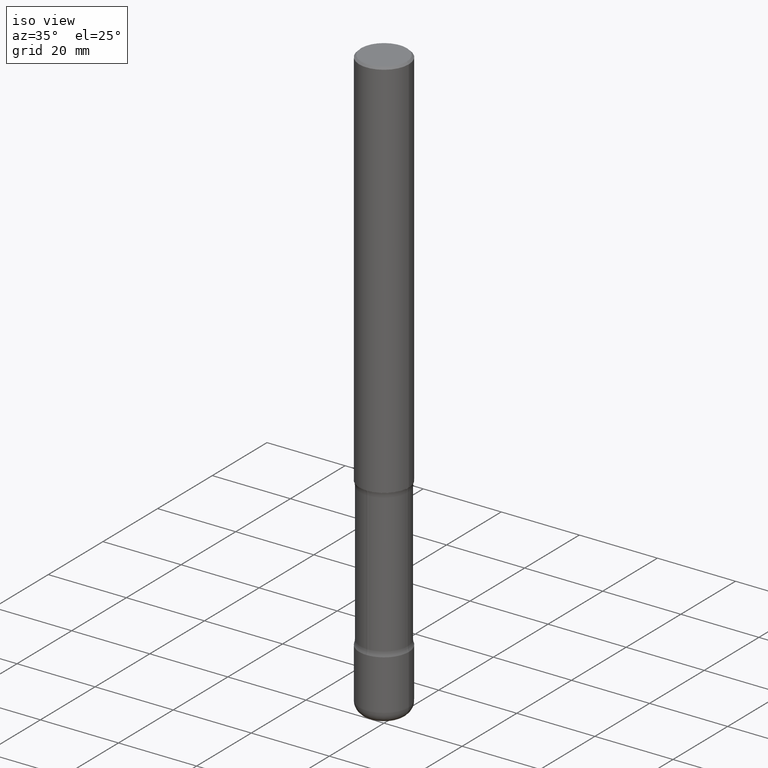
[diagram: clean part render]
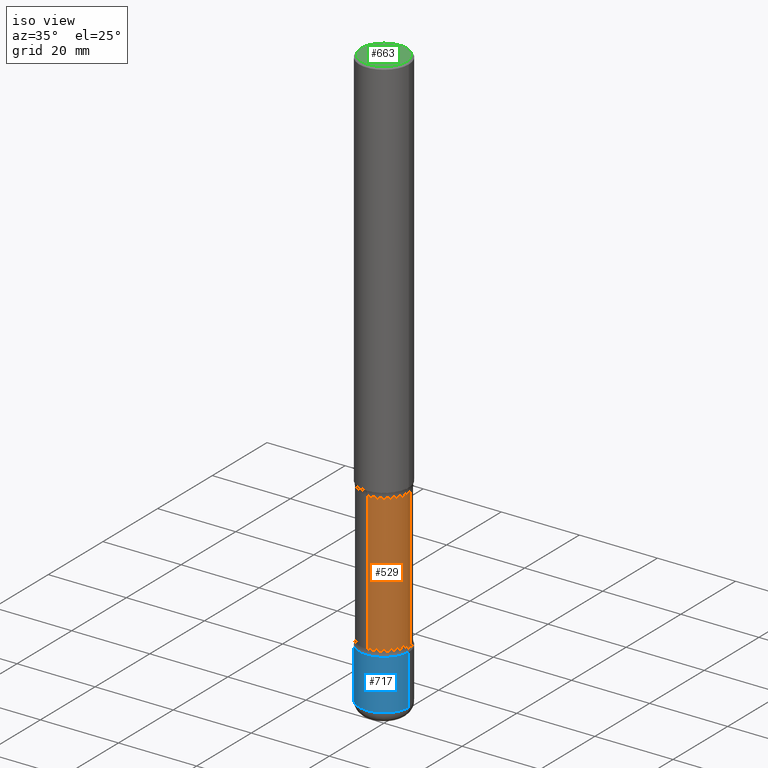
[diagram: same view with three faces highlighted in distinct colors, each labeled with its STEP entity id]
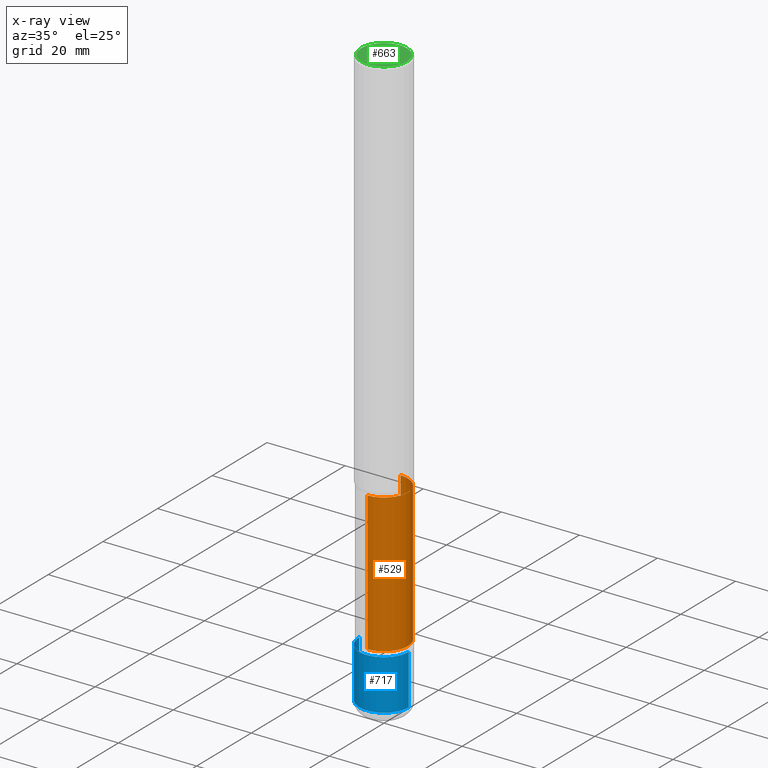
[diagram: x-ray of the same camera — body ghosted, the three highlighted faces saturated]
A machine part, iso view with three faces highlighted in distinct colors.
The next image is the same camera in x-ray (body ghosted, the three faces saturated) — at least one of them is partly hidden behind the body in this view.
Their STEP definitions:

[orange] entity #529 — the highlighted cylindrical surface (edge-blend (fillet) strip) has radius 6.096 mm, axis along (0, -0, -1).
#35 = VERTEX_POINT ( 'NONE', #526 ) ;
#40 = AXIS2_PLACEMENT_3D ( 'NONE', #294, #484, #540 ) ;
#56 = EDGE_CURVE ( 'NONE', #35, #515, #100, .T. ) ;
#66 = DIRECTION ( 'NONE',  ( 6.982962677686265922E-15, 1.000000000000000000, -4.553079989440436725E-15 ) ) ;
#82 = VECTOR ( 'NONE', #357, 39.37007874015748143 ) ;
#99 = CARTESIAN_POINT ( 'NONE',  ( -1.680822009453894668E-15, -0.2400000000000188927, -5.326010205144336318 ) ) ;
#100 = LINE ( 'NONE', #787, #82 ) ;
#102 = CYLINDRICAL_SURFACE ( 'NONE', #40, 0.2400000000000001854 ) ;
#140 = ORIENTED_EDGE ( 'NONE', *, *, #410, .F. ) ;
#172 = FACE_OUTER_BOUND ( 'NONE', #320, .T. ) ;
#229 = CARTESIAN_POINT ( 'NONE',  ( 1.675911042644851685E-15, 0.2399999999999792299, -5.996333319203366763 ) ) ;
#292 = CARTESIAN_POINT ( 'NONE',  ( 1.675911042644836105E-15, 0.2399999999999816724, -5.326010205144338983 ) ) ;
#294 = CARTESIAN_POINT ( 'NONE',  ( 1.466498880573015090E-28, -2.093444944235244249E-14, -5.996333319203365875 ) ) ;
#295 = DIRECTION ( 'NONE',  ( 2.447307951285550770E-29, -3.488847578381714492E-15, -1.000000000000000000 ) ) ;
#297 = ORIENTED_EDGE ( 'NONE', *, *, #585, .T. ) ;
#320 = EDGE_LOOP ( 'NONE', ( #297, #362, #140, #684 ) ) ;
#330 = CIRCLE ( 'NONE', #563, 0.2400000000000001021 ) ;
#357 = DIRECTION ( 'NONE',  ( 2.447307951285550770E-29, -3.488847578381714492E-15, -1.000000000000000000 ) ) ;
#362 = ORIENTED_EDGE ( 'NONE', *, *, #56, .T. ) ;
#369 = DIRECTION ( 'NONE',  ( 2.447307951285550770E-29, -3.488847578381714098E-15, -1.000000000000000000 ) ) ;
#410 = EDGE_CURVE ( 'NONE', #805, #515, #629, .T. ) ;
#415 = VERTEX_POINT ( 'NONE', #646 ) ;
#416 = AXIS2_PLACEMENT_3D ( 'NONE', #643, #764, #458 ) ;
#417 = VECTOR ( 'NONE', #295, 39.37007874015748143 ) ;
#458 = DIRECTION ( 'NONE',  ( 6.982962677686265922E-15, 1.000000000000000000, -4.553079989440433570E-15 ) ) ;
#484 = DIRECTION ( 'NONE',  ( 2.447307951285550770E-29, -3.488847578381714098E-15, -1.000000000000000000 ) ) ;
#515 = VERTEX_POINT ( 'NONE', #99 ) ;
#526 = CARTESIAN_POINT ( 'NONE',  ( -1.680822009453930562E-15, -0.2400000000000138412, -3.923989794855663238 ) ) ;
#529 = ADVANCED_FACE ( 'NONE', ( #172 ), #102, .T. ) ;
#540 = DIRECTION ( 'NONE',  ( 6.982962677686265922E-15, 1.000000000000000000, -4.553079989440435148E-15 ) ) ;
#548 = LINE ( 'NONE', #229, #417 ) ;
#563 = AXIS2_PLACEMENT_3D ( 'NONE', #564, #369, #66 ) ;
#564 = CARTESIAN_POINT ( 'NONE',  ( 9.593326020798897395E-29, -1.370435875585693755E-14, -3.923989794855664126 ) ) ;
#585 = EDGE_CURVE ( 'NONE', #415, #35, #330, .T. ) ;
#629 = CIRCLE ( 'NONE', #416, 0.2400000000000002687 ) ;
#643 = CARTESIAN_POINT ( 'NONE',  ( 1.302450171876299907E-28, -1.859579426913431588E-14, -5.326010205144338094 ) ) ;
#646 = CARTESIAN_POINT ( 'NONE',  ( 1.675911042644800409E-15, 0.2399999999999864186, -3.923989794855665458 ) ) ;
#684 = ORIENTED_EDGE ( 'NONE', *, *, #804, .F. ) ;
#764 = DIRECTION ( 'NONE',  ( 2.447307951285550770E-29, -3.488847578381714098E-15, -1.000000000000000000 ) ) ;
#787 = CARTESIAN_POINT ( 'NONE',  ( -1.646519519465022014E-15, -0.2400000000000211131, -5.996333319203364987 ) ) ;
#804 = EDGE_CURVE ( 'NONE', #415, #805, #548, .T. ) ;
#805 = VERTEX_POINT ( 'NONE', #292 ) ;

[blue] entity #717 — the highlighted cylindrical surface (edge-blend (fillet) strip) has radius 6.35 mm, axis along (-0, 0, 1).
#46 = DIRECTION ( 'NONE',  ( -2.445468806185136597E-29, 3.491481338843145583E-15, 1.000000000000000000 ) ) ;
#78 = CARTESIAN_POINT ( 'NONE',  ( -0.2499999999999999722, -1.875355343299744876E-14, -5.880000000000000782 ) ) ;
#79 = VERTEX_POINT ( 'NONE', #154 ) ;
#126 = DIRECTION ( 'NONE',  ( 1.000000000000000000, -6.982962677686266711E-15, 4.876176775795935793E-29 ) ) ;
#154 = CARTESIAN_POINT ( 'NONE',  ( -0.2500000000000000000, -1.787195439493955396E-14, -5.375000000000000888 ) ) ;
#204 = VERTEX_POINT ( 'NONE', #78 ) ;
#248 = AXIS2_PLACEMENT_3D ( 'NONE', #656, #478, #666 ) ;
#265 = CARTESIAN_POINT ( 'NONE',  ( 0.2500000000000000000, -2.051245286570347630E-14, -5.375000000000000888 ) ) ;
#284 = ORIENTED_EDGE ( 'NONE', *, *, #377, .T. ) ;
#300 = CIRCLE ( 'NONE', #767, 0.2500000000000000000 ) ;
#317 = CIRCLE ( 'NONE', #248, 0.2500000000000000000 ) ;
#318 = AXIS2_PLACEMENT_3D ( 'NONE', #793, #46, #126 ) ;
#325 = ORIENTED_EDGE ( 'NONE', *, *, #536, .T. ) ;
#350 = DIRECTION ( 'NONE',  ( -2.445468806185136597E-29, 3.491481338843145583E-15, 1.000000000000000000 ) ) ;
#361 = DIRECTION ( 'NONE',  ( -2.445468806185136877E-29, 3.491481338843145188E-15, 1.000000000000000000 ) ) ;
#377 = EDGE_CURVE ( 'NONE', #469, #384, #392, .T. ) ;
#384 = VERTEX_POINT ( 'NONE', #265 ) ;
#392 = LINE ( 'NONE', #652, #395 ) ;
#395 = VECTOR ( 'NONE', #587, 39.37007874015748143 ) ;
#422 = DIRECTION ( 'NONE',  ( 1.000000000000000000, -6.982962677686262766E-15, 0.000000000000000000 ) ) ;
#469 = VERTEX_POINT ( 'NONE', #481 ) ;
#475 = EDGE_CURVE ( 'NONE', #79, #384, #317, .T. ) ;
#478 = DIRECTION ( 'NONE',  ( -2.445468806185136597E-29, 3.491481338843145583E-15, 1.000000000000000000 ) ) ;
#481 = CARTESIAN_POINT ( 'NONE',  ( 0.2499999999999999722, -2.227565094181926275E-14, -5.880000000000000782 ) ) ;
#536 = EDGE_CURVE ( 'NONE', #204, #469, #300, .T. ) ;
#552 = LINE ( 'NONE', #625, #741 ) ;
#587 = DIRECTION ( 'NONE',  ( -2.445468806185136877E-29, 3.491481338843145188E-15, 1.000000000000000000 ) ) ;
#610 = CYLINDRICAL_SURFACE ( 'NONE', #318, 0.2500000000000000000 ) ;
#612 = EDGE_LOOP ( 'NONE', ( #618, #325, #284, #795 ) ) ;
#618 = ORIENTED_EDGE ( 'NONE', *, *, #780, .F. ) ;
#625 = CARTESIAN_POINT ( 'NONE',  ( -0.2500000000000000000, 1.776356839400250465E-15, -1.229733772563726445E-29 ) ) ;
#652 = CARTESIAN_POINT ( 'NONE',  ( 0.2500000000000000000, -1.745740669421566678E-15, 1.219044193948983948E-29 ) ) ;
#656 = CARTESIAN_POINT ( 'NONE',  ( 1.314439483324511145E-28, -1.876671219628190963E-14, -5.375000000000000888 ) ) ;
#666 = DIRECTION ( 'NONE',  ( 1.000000000000000000, -6.982962677686262766E-15, 0.000000000000000000 ) ) ;
#667 = FACE_OUTER_BOUND ( 'NONE', #612, .T. ) ;
#717 = ADVANCED_FACE ( 'NONE', ( #667 ), #610, .T. ) ;
#726 = CARTESIAN_POINT ( 'NONE',  ( 1.437935658036860328E-28, -2.052991027239769923E-14, -5.880000000000000782 ) ) ;
#741 = VECTOR ( 'NONE', #361, 39.37007874015748143 ) ;
#767 = AXIS2_PLACEMENT_3D ( 'NONE', #726, #350, #422 ) ;
#780 = EDGE_CURVE ( 'NONE', #204, #79, #552, .T. ) ;
#793 = CARTESIAN_POINT ( 'NONE',  ( 0.000000000000000000, 0.000000000000000000, 0.000000000000000000 ) ) ;
#795 = ORIENTED_EDGE ( 'NONE', *, *, #475, .F. ) ;

[green] entity #663 — the highlighted planar face has unit normal (0, -0, -1).
#48 = VERTEX_POINT ( 'NONE', #174 ) ;
#62 = CARTESIAN_POINT ( 'NONE',  ( -1.043851414335219820E-46, 1.490343170380447200E-32, 4.268512490100411279E-18 ) ) ;
#75 = ORIENTED_EDGE ( 'NONE', *, *, #97, .T. ) ;
#91 = AXIS2_PLACEMENT_3D ( 'NONE', #62, #573, #203 ) ;
#92 = CIRCLE ( 'NONE', #212, 0.2299999999999997047 ) ;
#97 = EDGE_CURVE ( 'NONE', #48, #503, #600, .T. ) ;
#167 = CARTESIAN_POINT ( 'NONE',  ( -1.043851414335219820E-46, 1.490343170380447200E-32, 4.268512490100411279E-18 ) ) ;
#174 = CARTESIAN_POINT ( 'NONE',  ( -0.2299999999999997047, 1.640996229256270547E-15, 4.268512490089056766E-18 ) ) ;
#203 = DIRECTION ( 'NONE',  ( 1.000000000000000000, -6.982962677686266711E-15, 4.876225828469315047E-29 ) ) ;
#212 = AXIS2_PLACEMENT_3D ( 'NONE', #167, #349, #597 ) ;
#282 = EDGE_LOOP ( 'NONE', ( #75, #799 ) ) ;
#340 = DIRECTION ( 'NONE',  ( 2.438088387897960049E-29, -3.491481338843145188E-15, -1.000000000000000000 ) ) ;
#349 = DIRECTION ( 'NONE',  ( -2.445468806185136597E-29, 3.491481338843145583E-15, 1.000000000000000000 ) ) ;
#352 = CARTESIAN_POINT ( 'NONE',  ( 0.2299999999999997047, -1.681434332853597236E-15, 4.268512490111905999E-18 ) ) ;
#366 = AXIS2_PLACEMENT_3D ( 'NONE', #716, #340, #595 ) ;
#385 = FACE_OUTER_BOUND ( 'NONE', #282, .T. ) ;
#449 = EDGE_CURVE ( 'NONE', #503, #48, #92, .T. ) ;
#487 = PLANE ( 'NONE',  #366 ) ;
#503 = VERTEX_POINT ( 'NONE', #352 ) ;
#573 = DIRECTION ( 'NONE',  ( -2.445468806185136597E-29, 3.491481338843145583E-15, 1.000000000000000000 ) ) ;
#595 = DIRECTION ( 'NONE',  ( -1.000000000000000000, 6.982962677686265922E-15, -4.876176775795935793E-29 ) ) ;
#597 = DIRECTION ( 'NONE',  ( 1.000000000000000000, -6.982962677686266711E-15, 4.876225828469315047E-29 ) ) ;
#600 = CIRCLE ( 'NONE', #91, 0.2299999999999997047 ) ;
#663 = ADVANCED_FACE ( 'NONE', ( #385 ), #487, .F. ) ;
#716 = CARTESIAN_POINT ( 'NONE',  ( 1.606081415867839095E-15, 0.2299999999999997047, -8.009064516888722925E-16 ) ) ;
#799 = ORIENTED_EDGE ( 'NONE', *, *, #449, .T. ) ;